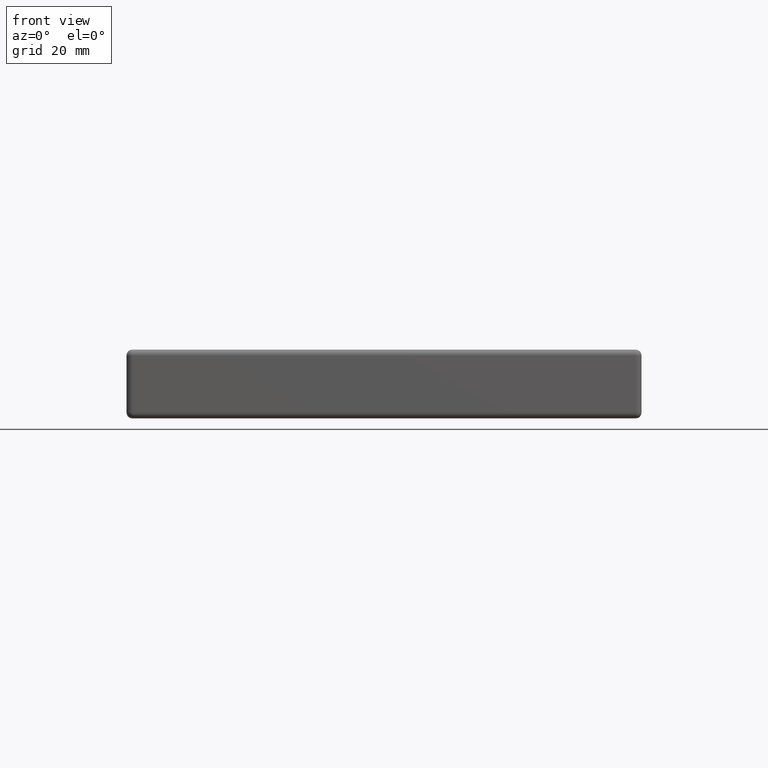
[diagram: clean part render]
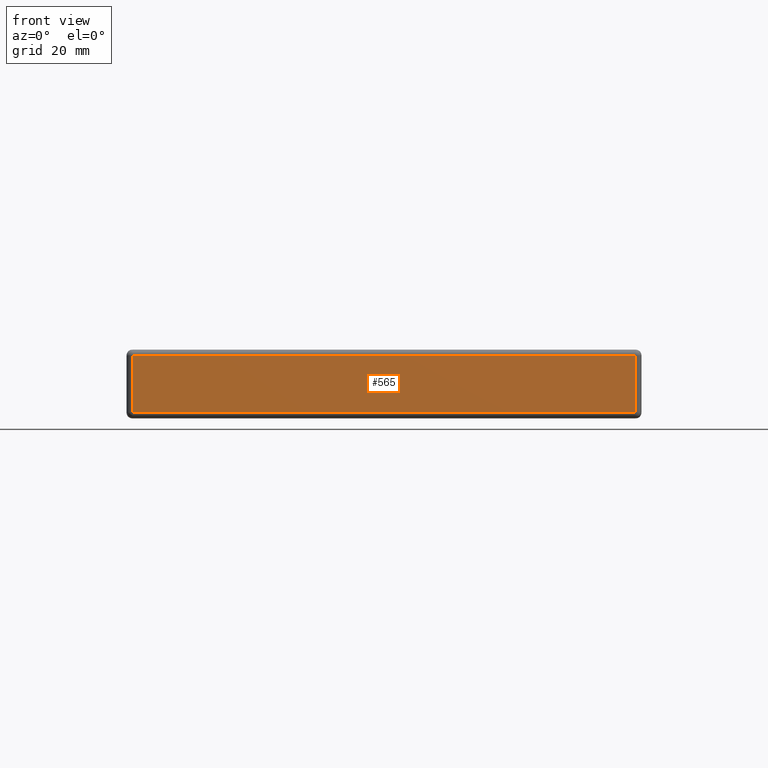
[diagram: same view with one face highlighted and labeled with its STEP entity id]
A machine part, front view. The second image highlights one B-rep face of the part: STEP entity #565.
In plain terms, the highlighted planar face has unit normal (0, -1, 0).
Its self-contained STEP definition (entity closure, byte-faithful):
#31=LINE('',#957,#55);
#41=LINE('',#993,#65);
#44=LINE('',#998,#68);
#46=LINE('',#1001,#70);
#55=VECTOR('',#782,88.);
#65=VECTOR('',#832,10.);
#68=VECTOR('',#839,88.);
#70=VECTOR('',#843,10.);
#77=PLANE('',#652);
#164=FACE_OUTER_BOUND('',#230,.T.);
#230=EDGE_LOOP('',(#510,#511,#512,#513));
#307=VERTEX_POINT('',#929);
#309=VERTEX_POINT('',#935);
#310=VERTEX_POINT('',#939);
#314=VERTEX_POINT('',#951);
#365=EDGE_CURVE('',#314,#309,#31,.T.);
#384=EDGE_CURVE('',#310,#314,#41,.T.);
#387=EDGE_CURVE('',#307,#310,#44,.T.);
#389=EDGE_CURVE('',#309,#307,#46,.T.);
#510=ORIENTED_EDGE('',*,*,#365,.F.);
#511=ORIENTED_EDGE('',*,*,#384,.F.);
#512=ORIENTED_EDGE('',*,*,#387,.F.);
#513=ORIENTED_EDGE('',*,*,#389,.F.);
#565=ADVANCED_FACE('',(#164),#77,.T.);
#652=AXIS2_PLACEMENT_3D('',#1002,#844,#845);
#782=DIRECTION('',(-1.,0.,0.));
#832=DIRECTION('',(0.,0.,-1.));
#839=DIRECTION('',(1.,0.,0.));
#843=DIRECTION('',(0.,0.,1.));
#844=DIRECTION('center_axis',(0.,-1.,0.));
#845=DIRECTION('ref_axis',(1.,0.,0.));
#929=CARTESIAN_POINT('',(-44.,-45.,11.));
#935=CARTESIAN_POINT('',(-44.,-45.,1.));
#939=CARTESIAN_POINT('',(44.,-45.,11.));
#951=CARTESIAN_POINT('',(44.,-45.,1.));
#957=CARTESIAN_POINT('',(-22.5,-45.,1.));
#993=CARTESIAN_POINT('',(44.,-45.,0.));
#998=CARTESIAN_POINT('',(-22.5,-45.,11.));
#1001=CARTESIAN_POINT('',(-44.,-45.,0.));
#1002=CARTESIAN_POINT('Origin',(-45.,-45.,0.));